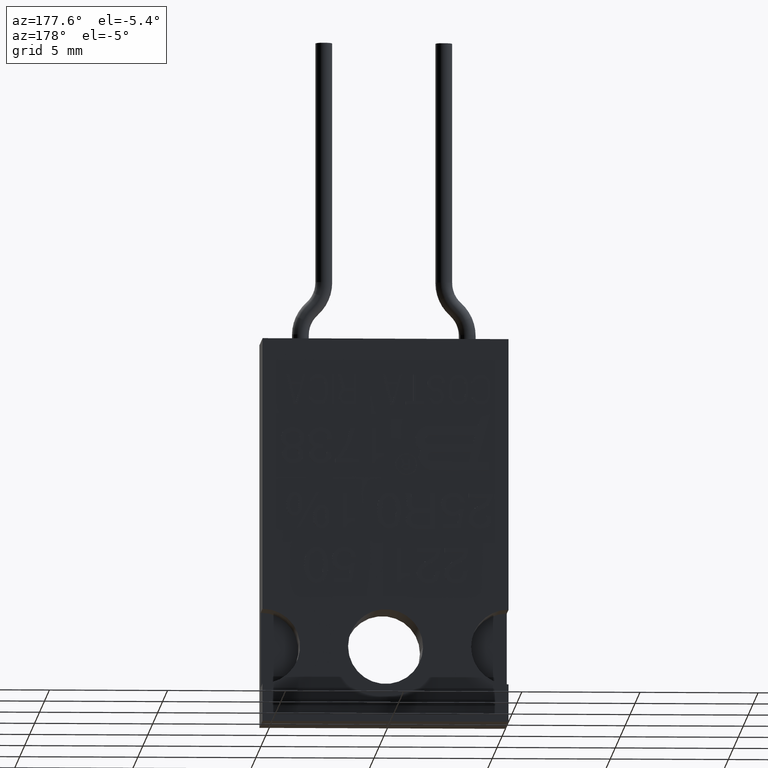
[diagram: clean part render]
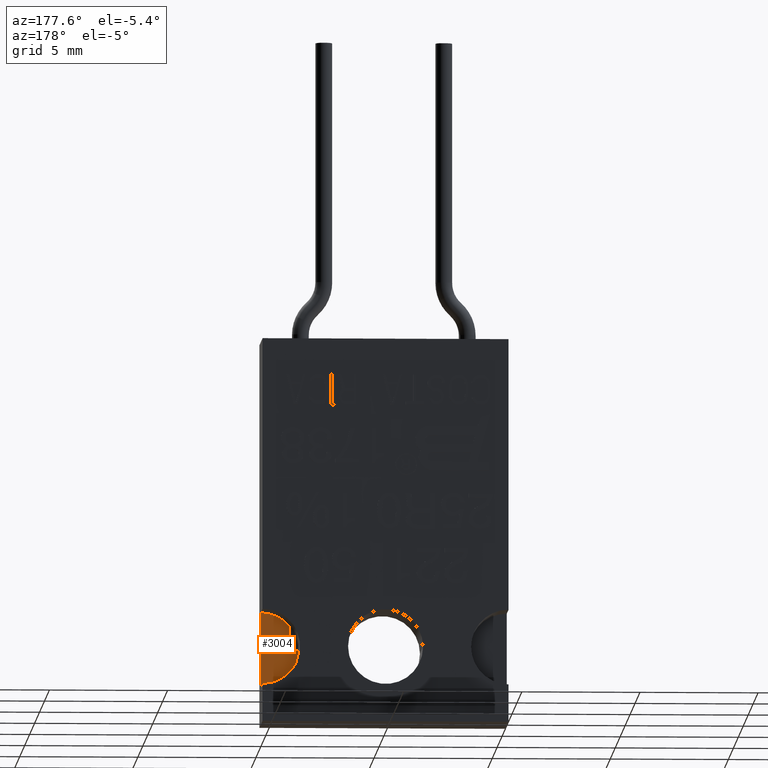
[diagram: same view with one face highlighted and labeled with its STEP entity id]
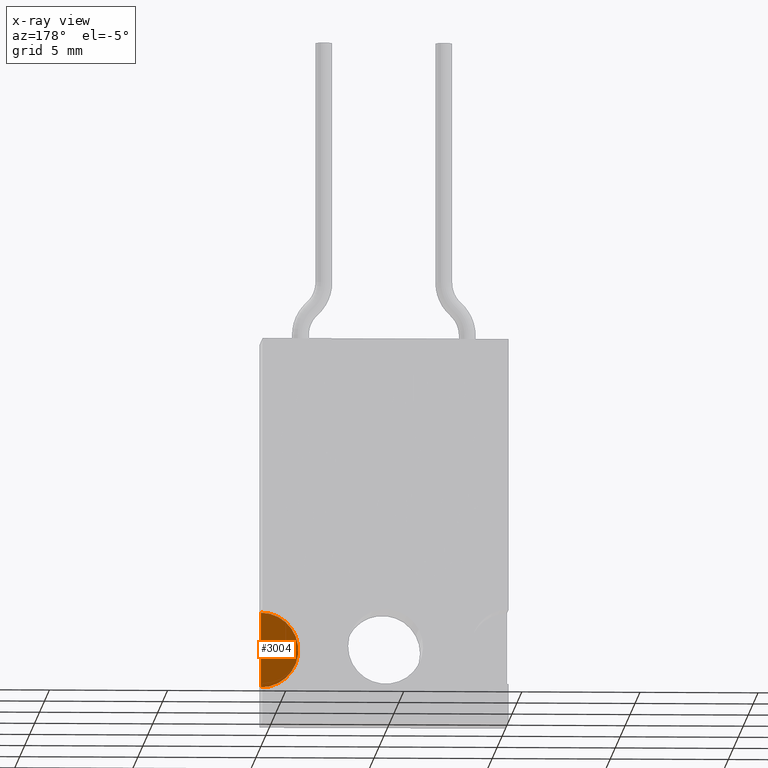
[diagram: x-ray of the same camera — body ghosted, the highlighted face saturated]
A machine part, auxiliary view. The second image highlights one B-rep face of the part: STEP entity #3004.
The next image is the same camera in x-ray: the body ghosted, the highlighted face saturated — about 0% of this face is hidden behind the body in this view.
In plain terms, the highlighted planar face has unit normal (0, -1, 0).
Its self-contained STEP definition (entity closure, byte-faithful):
#2700=DIRECTION('',(0.E0,1.E0,0.E0));
#2701=VECTOR('',#2700,1.25E-1);
#2702=CARTESIAN_POINT('',(-2.05E-1,2.325E-1,-5.4E-2));
#2703=LINE('',#2702,#2701);
#2704=CARTESIAN_POINT('',(-2.05E-1,2.95E-1,-5.4E-2));
#2705=DIRECTION('',(0.E0,0.E0,-1.E0));
#2706=DIRECTION('',(0.E0,1.E0,0.E0));
#2707=AXIS2_PLACEMENT_3D('',#2704,#2705,#2706);
#2777=CARTESIAN_POINT('',(-2.05E-1,2.325E-1,-5.4E-2));
#2778=CARTESIAN_POINT('',(-2.05E-1,3.575E-1,-5.4E-2));
#2779=VERTEX_POINT('',#2777);
#2780=VERTEX_POINT('',#2778);
#2995=CARTESIAN_POINT('',(-2.05E-1,2.95E-1,-5.4E-2));
#2996=DIRECTION('',(0.E0,0.E0,1.E0));
#2997=DIRECTION('',(1.E0,0.E0,0.E0));
#2998=AXIS2_PLACEMENT_3D('',#2995,#2996,#2997);
#2999=PLANE('',#2998);
#3000=ORIENTED_EDGE('',*,*,#2977,.F.);
#3001=ORIENTED_EDGE('',*,*,#2988,.F.);
#3002=EDGE_LOOP('',(#3000,#3001));
#3003=FACE_OUTER_BOUND('',#3002,.F.);
#3004=ADVANCED_FACE('',(#3003),#2999,.F.);
#2708=CIRCLE('',#2707,6.25E-2);
#2977=EDGE_CURVE('',#2779,#2780,#2703,.T.);
#2988=EDGE_CURVE('',#2780,#2779,#2708,.T.);